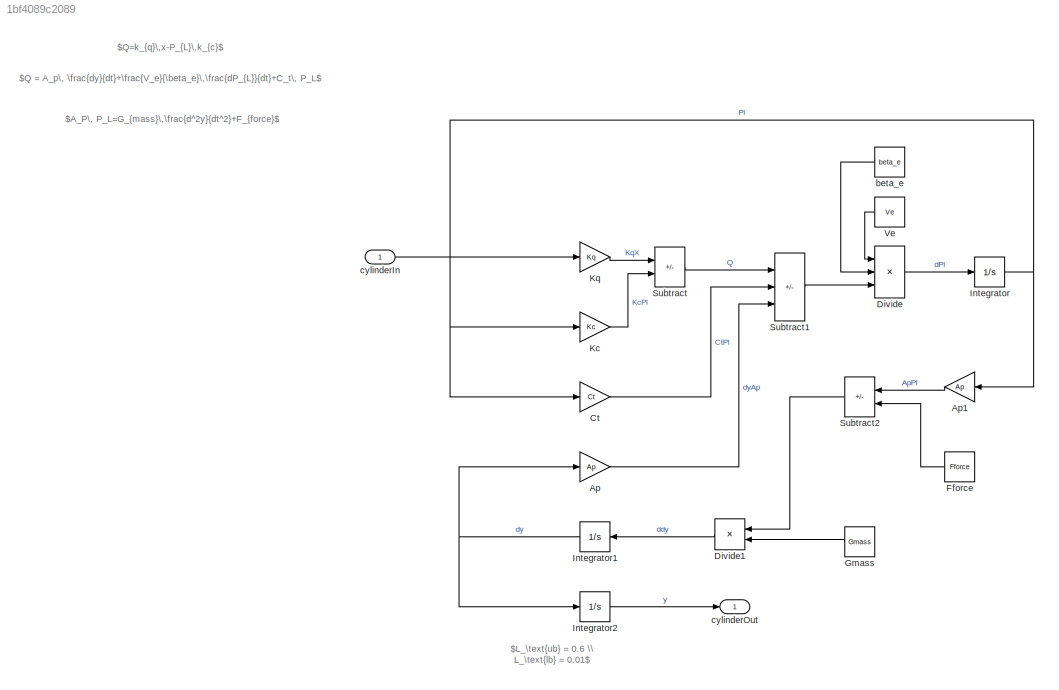
MODEL slx_1bf4089c2089
KIND model
CONFIG AbsTol = auto
CONFIG EnableMultiTasking = off
CONFIG FixedStep = auto
CONFIG MaxStep = auto
CONFIG MinStep = auto
CONFIG RelTol = 1e-3
CONFIG SampleTimeConstraint = Unconstrained
CONFIG SolverName = FixedStepAuto
CONFIG StartTime = 0.0
CONFIG StopTime = 5
WORKSPACE source: mxarray member
WORKSPACE Ap = 0.0314
WORKSPACE Ct = 2.4e-12
WORKSPACE Fforce = 90000
WORKSPACE Gmass = 9000
WORKSPACE Kc = 1.68e-09
WORKSPACE Kq = 1.63
WORKSPACE Ve = 0.11304
WORKSPACE beta_e = 700000000
BLOCK [Gain] Ap
  Gain = Ap
BLOCK [Gain] Ap1
  Gain = Ap
BLOCK [Gain] Ct
  Gain = Ct
BLOCK [Product] Divide
  Inputs = /**
BLOCK [Product] Divide1
  Inputs = */
BLOCK [Constant] Fforce
  Value = Fforce
BLOCK [Constant] Gmass
  Value = Gmass
BLOCK [Integrator] Integrator
  InitialCondition = Fforce / Ap
BLOCK [Integrator] Integrator1
BLOCK [Integrator] Integrator2
  InitialCondition = L_init
  LimitOutput = on
  LowerSaturationLimit = L_lb
  UpperSaturationLimit = L_ub
BLOCK [Gain] Kc
  Gain = Kc
BLOCK [Gain] Kq
  Gain = Kq
BLOCK [Sum] Subtract
  IconShape = rectangular
  Inputs = +-
BLOCK [Sum] Subtract1
  IconShape = rectangular
  Inputs = +--
BLOCK [Sum] Subtract2
  IconShape = rectangular
  Inputs = +-
BLOCK [Constant] Ve
  Value = Ve
BLOCK [Constant] beta_e
  Value = beta_e
BLOCK [Inport] cylinderIn
BLOCK [Outport] cylinderOut
ANNOTATION (root): $L_\text{ub} = 0.6 \\ L_\text{lb} = 0.01$
ANNOTATION (root): $A_P\, P_L=G_{mass}\,\frac{d^2y}{dt^2}+F_{force}$
ANNOTATION (root): $Q = A_p\, \frac{dy}{dt}+\frac{V_e}{\beta_e}\,\frac{dP_{L}}{dt}+C_t\, P_L$
ANNOTATION (root): $Q=k_{q}\,x-P_{L}\,k_{c}$
LINE Ap1:1 -> Subtract2:1
LINE Ap:1 -> Subtract1:3
LINE Ct:1 -> Subtract1:2
LINE Divide1:1 -> Integrator1:1
LINE Divide:1 -> Integrator:1
LINE Fforce:1 -> Subtract2:2
LINE Gmass:1 -> Divide1:2
NET Integrator1:1 -> Ap:1, Integrator2:1
LINE Integrator2:1 -> cylinderOut:1
NET Integrator:1 -> Ap1:1, Ct:1, Kc:1
LINE Kc:1 -> Subtract:2
LINE Kq:1 -> Subtract:1
LINE Subtract1:1 -> Divide:3
LINE Subtract2:1 -> Divide1:1
LINE Subtract:1 -> Subtract1:1
LINE Ve:1 -> Divide:1
LINE beta_e:1 -> Divide:2
LINE cylinderIn:1 -> Kq:1
note: NET lines group one-source signal fan-out (src -> all destinations, sorted); 1:1 wires keep LINE
